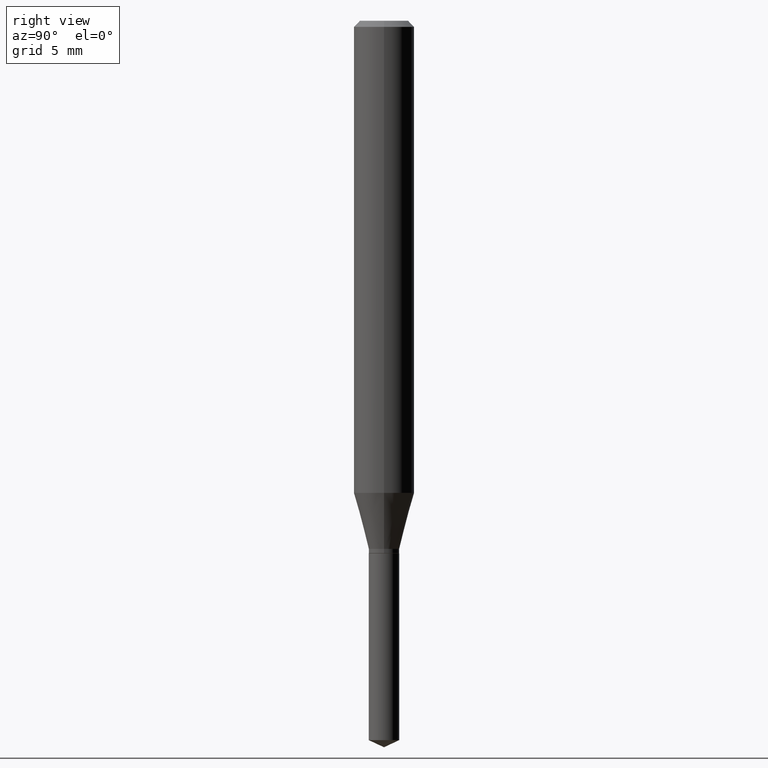
[diagram: clean part render]
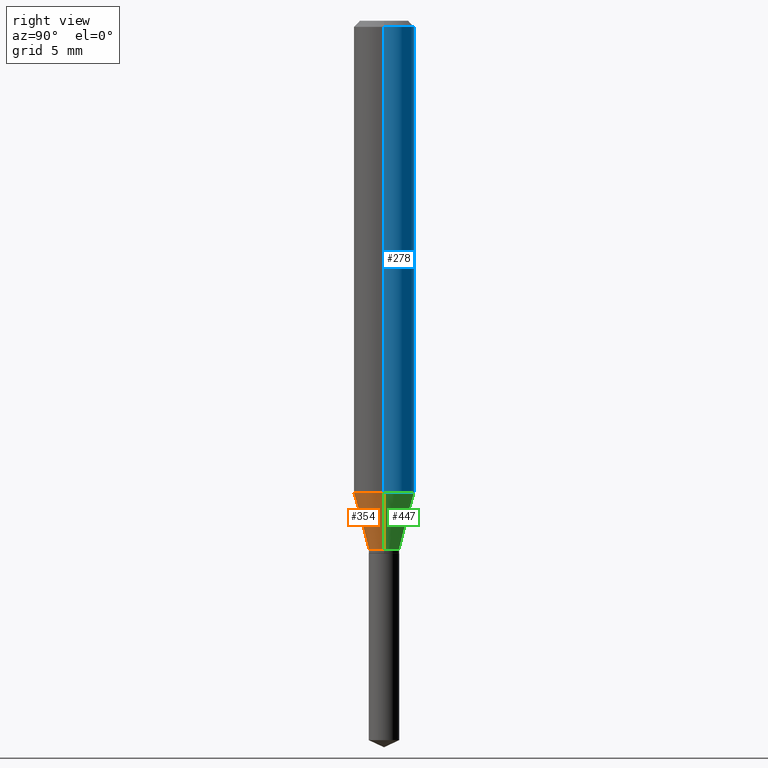
[diagram: same view with three faces highlighted in distinct colors, each labeled with its STEP entity id]
A machine part, right view with three faces highlighted in distinct colors.
Their STEP definitions:

[orange] entity #354 — the highlighted conical surface has half-angle 15 deg.
#6 = DIRECTION ( 'NONE',  ( -2.445468806185136597E-29, 3.491481338843145583E-15, 1.000000000000000000 ) ) ;
#10 = ORIENTED_EDGE ( 'NONE', *, *, #463, .F. ) ;
#31 = FACE_OUTER_BOUND ( 'NONE', #368, .T. ) ;
#38 = VERTEX_POINT ( 'NONE', #303 ) ;
#49 = CIRCLE ( 'NONE', #144, 0.06250000000000012490 ) ;
#52 = ORIENTED_EDGE ( 'NONE', *, *, #482, .T. ) ;
#66 = CARTESIAN_POINT ( 'NONE',  ( -0.03150000000000000022, -3.599351104268813703E-15, -1.090500000000000247 ) ) ;
#71 = ORIENTED_EDGE ( 'NONE', *, *, #307, .F. ) ;
#77 = ORIENTED_EDGE ( 'NONE', *, *, #85, .T. ) ;
#85 = EDGE_CURVE ( 'NONE', #154, #151, #87, .T. ) ;
#87 = CIRCLE ( 'NONE', #166, 0.03150000000000000022 ) ;
#144 = AXIS2_PLACEMENT_3D ( 'NONE', #253, #6, #325 ) ;
#146 = DIRECTION ( 'NONE',  ( -2.445468806185136597E-29, 3.491481338843145583E-15, 1.000000000000000000 ) ) ;
#151 = VERTEX_POINT ( 'NONE', #472 ) ;
#152 = VECTOR ( 'NONE', #352, 39.37007874015748854 ) ;
#153 = CARTESIAN_POINT ( 'NONE',  ( 2.666783733144892185E-29, -3.807460400008450745E-15, -1.090500000000000247 ) ) ;
#154 = VERTEX_POINT ( 'NONE', #66 ) ;
#162 = DIRECTION ( 'NONE',  ( -2.445468806185136597E-29, 3.491481338843145583E-15, 1.000000000000000000 ) ) ;
#166 = AXIS2_PLACEMENT_3D ( 'NONE', #204, #162, #346 ) ;
#185 = LINE ( 'NONE', #235, #465 ) ;
#195 = VERTEX_POINT ( 'NONE', #320 ) ;
#204 = CARTESIAN_POINT ( 'NONE',  ( 2.666783733144892185E-29, -3.807460400008450745E-15, -1.090500000000000247 ) ) ;
#235 = CARTESIAN_POINT ( 'NONE',  ( -0.03150000000000000022, -3.583639438244019382E-15, -1.090500000000000247 ) ) ;
#253 = CARTESIAN_POINT ( 'NONE',  ( 2.383858704321651404E-29, -3.403518441750972250E-15, -0.9748064249653647373 ) ) ;
#275 = AXIS2_PLACEMENT_3D ( 'NONE', #153, #146, #441 ) ;
#281 = CONICAL_SURFACE ( 'NONE', #275, 0.03150000000000000022, 0.2617993877991499074 ) ;
#303 = CARTESIAN_POINT ( 'NONE',  ( 0.06250000000000012490, -3.839953609106364708E-15, -0.9748064249653647373 ) ) ;
#307 = EDGE_CURVE ( 'NONE', #195, #38, #49, .T. ) ;
#320 = CARTESIAN_POINT ( 'NONE',  ( -0.06250000000000012490, -2.959429231900908845E-15, -0.9748064249653647373 ) ) ;
#325 = DIRECTION ( 'NONE',  ( 1.000000000000000000, -6.982962677686264344E-15, 0.000000000000000000 ) ) ;
#346 = DIRECTION ( 'NONE',  ( 1.000000000000000000, -6.982962677686270655E-15, 0.000000000000000000 ) ) ;
#352 = DIRECTION ( 'NONE',  ( 0.2588190451025211836, 1.565188264969622559E-15, 0.9659258262890679791 ) ) ;
#354 = ADVANCED_FACE ( 'NONE', ( #31 ), #281, .T. ) ;
#368 = EDGE_LOOP ( 'NONE', ( #10, #77, #52, #71 ) ) ;
#390 = CARTESIAN_POINT ( 'NONE',  ( 0.03150000000000000022, -4.027423724355568083E-15, -1.090500000000000247 ) ) ;
#423 = LINE ( 'NONE', #390, #152 ) ;
#441 = DIRECTION ( 'NONE',  ( 1.000000000000000000, -6.982962677686270655E-15, 0.000000000000000000 ) ) ;
#463 = EDGE_CURVE ( 'NONE', #154, #195, #185, .T. ) ;
#465 = VECTOR ( 'NONE', #466, 39.37007874015748854 ) ;
#466 = DIRECTION ( 'NONE',  ( -0.2588190451025211836, 5.211531920934547886E-15, 0.9659258262890679791 ) ) ;
#472 = CARTESIAN_POINT ( 'NONE',  ( 0.03150000000000000022, -4.027423724355568083E-15, -1.090500000000000247 ) ) ;
#482 = EDGE_CURVE ( 'NONE', #151, #38, #423, .T. ) ;

[blue] entity #278 — the highlighted cylindrical surface (edge-blend (fillet) strip) has radius 1.5875 mm, axis along (-0, 0, 1).
#24 = FACE_OUTER_BOUND ( 'NONE', #339, .T. ) ;
#30 = CARTESIAN_POINT ( 'NONE',  ( 0.06250000000000000000, -4.800786840909313294E-16, -0.01250000000000008916 ) ) ;
#38 = VERTEX_POINT ( 'NONE', #303 ) ;
#43 = CARTESIAN_POINT ( 'NONE',  ( 0.06250000000000005551, -4.364351673553921131E-16, 3.047610484872463023E-30 ) ) ;
#56 = CIRCLE ( 'NONE', #182, 0.06250000000000000000 ) ;
#57 = DIRECTION ( 'NONE',  ( 1.000000000000000000, -6.982962677686266711E-15, 0.000000000000000000 ) ) ;
#61 = CARTESIAN_POINT ( 'NONE',  ( 0.000000000000000000, 0.000000000000000000, 0.000000000000000000 ) ) ;
#64 = VECTOR ( 'NONE', #369, 39.37007874015748143 ) ;
#103 = ORIENTED_EDGE ( 'NONE', *, *, #227, .F. ) ;
#116 = LINE ( 'NONE', #43, #64 ) ;
#121 = VERTEX_POINT ( 'NONE', #30 ) ;
#170 = DIRECTION ( 'NONE',  ( -2.445468806185136597E-29, 3.491481338843145583E-15, 1.000000000000000000 ) ) ;
#172 = DIRECTION ( 'NONE',  ( -2.445468806185136877E-29, 3.491481338843145188E-15, 1.000000000000000000 ) ) ;
#176 = AXIS2_PLACEMENT_3D ( 'NONE', #61, #212, #353 ) ;
#182 = AXIS2_PLACEMENT_3D ( 'NONE', #279, #170, #57 ) ;
#195 = VERTEX_POINT ( 'NONE', #320 ) ;
#212 = DIRECTION ( 'NONE',  ( -2.445468806185136597E-29, 3.491481338843145583E-15, 1.000000000000000000 ) ) ;
#221 = CARTESIAN_POINT ( 'NONE',  ( 2.383858704321651404E-29, -3.403518441750972250E-15, -0.9748064249653647373 ) ) ;
#227 = EDGE_CURVE ( 'NONE', #121, #251, #56, .T. ) ;
#251 = VERTEX_POINT ( 'NONE', #282 ) ;
#272 = EDGE_CURVE ( 'NONE', #195, #251, #426, .T. ) ;
#278 = ADVANCED_FACE ( 'NONE', ( #24 ), #318, .T. ) ;
#279 = CARTESIAN_POINT ( 'NONE',  ( 3.056836007731442729E-31, -4.364351673553962300E-17, -0.01250000000000008916 ) ) ;
#282 = CARTESIAN_POINT ( 'NONE',  ( -0.06250000000000000000, -1.279491769393191909E-15, -0.01250000000000008916 ) ) ;
#303 = CARTESIAN_POINT ( 'NONE',  ( 0.06250000000000012490, -3.839953609106364708E-15, -0.9748064249653647373 ) ) ;
#318 = CYLINDRICAL_SURFACE ( 'NONE', #176, 0.06250000000000005551 ) ;
#320 = CARTESIAN_POINT ( 'NONE',  ( -0.06250000000000012490, -2.959429231900908845E-15, -0.9748064249653647373 ) ) ;
#326 = ORIENTED_EDGE ( 'NONE', *, *, #272, .T. ) ;
#328 = DIRECTION ( 'NONE',  ( -2.445468806185136597E-29, 3.491481338843145583E-15, 1.000000000000000000 ) ) ;
#329 = ORIENTED_EDGE ( 'NONE', *, *, #455, .T. ) ;
#339 = EDGE_LOOP ( 'NONE', ( #329, #326, #103, #380 ) ) ;
#351 = CARTESIAN_POINT ( 'NONE',  ( -0.06250000000000005551, 4.440892098500630106E-16, -3.074334431409318916E-30 ) ) ;
#353 = DIRECTION ( 'NONE',  ( 1.000000000000000000, -6.982962677686267499E-15, 4.876176775795936353E-29 ) ) ;
#364 = DIRECTION ( 'NONE',  ( 1.000000000000000000, -6.982962677686264344E-15, 0.000000000000000000 ) ) ;
#369 = DIRECTION ( 'NONE',  ( -2.445468806185136877E-29, 3.491481338843145188E-15, 1.000000000000000000 ) ) ;
#380 = ORIENTED_EDGE ( 'NONE', *, *, #394, .F. ) ;
#382 = VECTOR ( 'NONE', #172, 39.37007874015748143 ) ;
#394 = EDGE_CURVE ( 'NONE', #38, #121, #116, .T. ) ;
#414 = AXIS2_PLACEMENT_3D ( 'NONE', #221, #328, #364 ) ;
#426 = LINE ( 'NONE', #351, #382 ) ;
#455 = EDGE_CURVE ( 'NONE', #38, #195, #458, .T. ) ;
#458 = CIRCLE ( 'NONE', #414, 0.06250000000000012490 ) ;

[green] entity #447 — the highlighted conical surface has half-angle 15 deg.
#3 = ORIENTED_EDGE ( 'NONE', *, *, #455, .F. ) ;
#38 = VERTEX_POINT ( 'NONE', #303 ) ;
#44 = ORIENTED_EDGE ( 'NONE', *, *, #463, .T. ) ;
#66 = CARTESIAN_POINT ( 'NONE',  ( -0.03150000000000000022, -3.599351104268813703E-15, -1.090500000000000247 ) ) ;
#68 = FACE_OUTER_BOUND ( 'NONE', #488, .T. ) ;
#73 = DIRECTION ( 'NONE',  ( 1.000000000000000000, -6.982962677686270655E-15, 0.000000000000000000 ) ) ;
#104 = CIRCLE ( 'NONE', #430, 0.03150000000000000022 ) ;
#113 = ORIENTED_EDGE ( 'NONE', *, *, #361, .T. ) ;
#122 = CONICAL_SURFACE ( 'NONE', #334, 0.03150000000000000022, 0.2617993877991499074 ) ;
#151 = VERTEX_POINT ( 'NONE', #472 ) ;
#152 = VECTOR ( 'NONE', #352, 39.37007874015748854 ) ;
#154 = VERTEX_POINT ( 'NONE', #66 ) ;
#155 = DIRECTION ( 'NONE',  ( 1.000000000000000000, -6.982962677686270655E-15, 0.000000000000000000 ) ) ;
#185 = LINE ( 'NONE', #235, #465 ) ;
#195 = VERTEX_POINT ( 'NONE', #320 ) ;
#220 = CARTESIAN_POINT ( 'NONE',  ( 2.666783733144892185E-29, -3.807460400008450745E-15, -1.090500000000000247 ) ) ;
#221 = CARTESIAN_POINT ( 'NONE',  ( 2.383858704321651404E-29, -3.403518441750972250E-15, -0.9748064249653647373 ) ) ;
#235 = CARTESIAN_POINT ( 'NONE',  ( -0.03150000000000000022, -3.583639438244019382E-15, -1.090500000000000247 ) ) ;
#295 = CARTESIAN_POINT ( 'NONE',  ( 2.666783733144892185E-29, -3.807460400008450745E-15, -1.090500000000000247 ) ) ;
#303 = CARTESIAN_POINT ( 'NONE',  ( 0.06250000000000012490, -3.839953609106364708E-15, -0.9748064249653647373 ) ) ;
#320 = CARTESIAN_POINT ( 'NONE',  ( -0.06250000000000012490, -2.959429231900908845E-15, -0.9748064249653647373 ) ) ;
#328 = DIRECTION ( 'NONE',  ( -2.445468806185136597E-29, 3.491481338843145583E-15, 1.000000000000000000 ) ) ;
#334 = AXIS2_PLACEMENT_3D ( 'NONE', #220, #336, #155 ) ;
#336 = DIRECTION ( 'NONE',  ( -2.445468806185136597E-29, 3.491481338843145583E-15, 1.000000000000000000 ) ) ;
#352 = DIRECTION ( 'NONE',  ( 0.2588190451025211836, 1.565188264969622559E-15, 0.9659258262890679791 ) ) ;
#361 = EDGE_CURVE ( 'NONE', #151, #154, #104, .T. ) ;
#364 = DIRECTION ( 'NONE',  ( 1.000000000000000000, -6.982962677686264344E-15, 0.000000000000000000 ) ) ;
#390 = CARTESIAN_POINT ( 'NONE',  ( 0.03150000000000000022, -4.027423724355568083E-15, -1.090500000000000247 ) ) ;
#414 = AXIS2_PLACEMENT_3D ( 'NONE', #221, #328, #364 ) ;
#423 = LINE ( 'NONE', #390, #152 ) ;
#430 = AXIS2_PLACEMENT_3D ( 'NONE', #295, #446, #73 ) ;
#446 = DIRECTION ( 'NONE',  ( -2.445468806185136597E-29, 3.491481338843145583E-15, 1.000000000000000000 ) ) ;
#447 = ADVANCED_FACE ( 'NONE', ( #68 ), #122, .T. ) ;
#455 = EDGE_CURVE ( 'NONE', #38, #195, #458, .T. ) ;
#458 = CIRCLE ( 'NONE', #414, 0.06250000000000012490 ) ;
#459 = ORIENTED_EDGE ( 'NONE', *, *, #482, .F. ) ;
#463 = EDGE_CURVE ( 'NONE', #154, #195, #185, .T. ) ;
#465 = VECTOR ( 'NONE', #466, 39.37007874015748854 ) ;
#466 = DIRECTION ( 'NONE',  ( -0.2588190451025211836, 5.211531920934547886E-15, 0.9659258262890679791 ) ) ;
#472 = CARTESIAN_POINT ( 'NONE',  ( 0.03150000000000000022, -4.027423724355568083E-15, -1.090500000000000247 ) ) ;
#482 = EDGE_CURVE ( 'NONE', #151, #38, #423, .T. ) ;
#488 = EDGE_LOOP ( 'NONE', ( #113, #44, #3, #459 ) ) ;